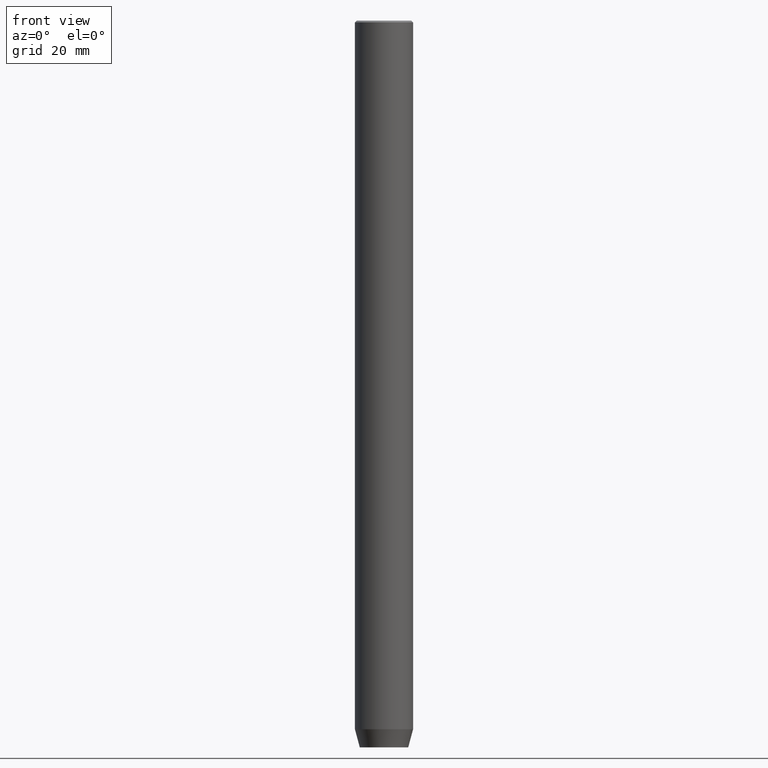
[diagram: clean part render]
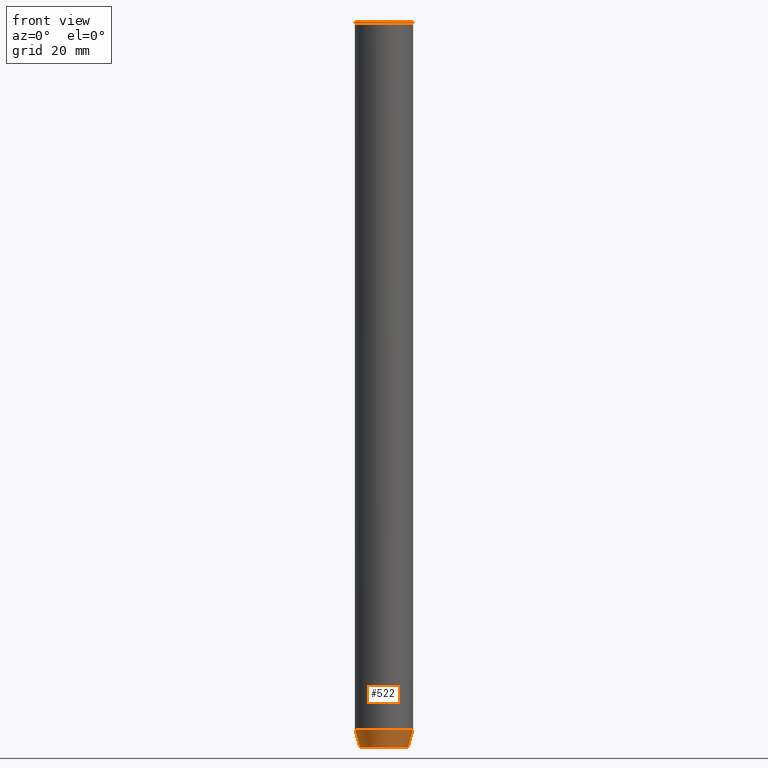
[diagram: same view with one face highlighted and labeled with its STEP entity id]
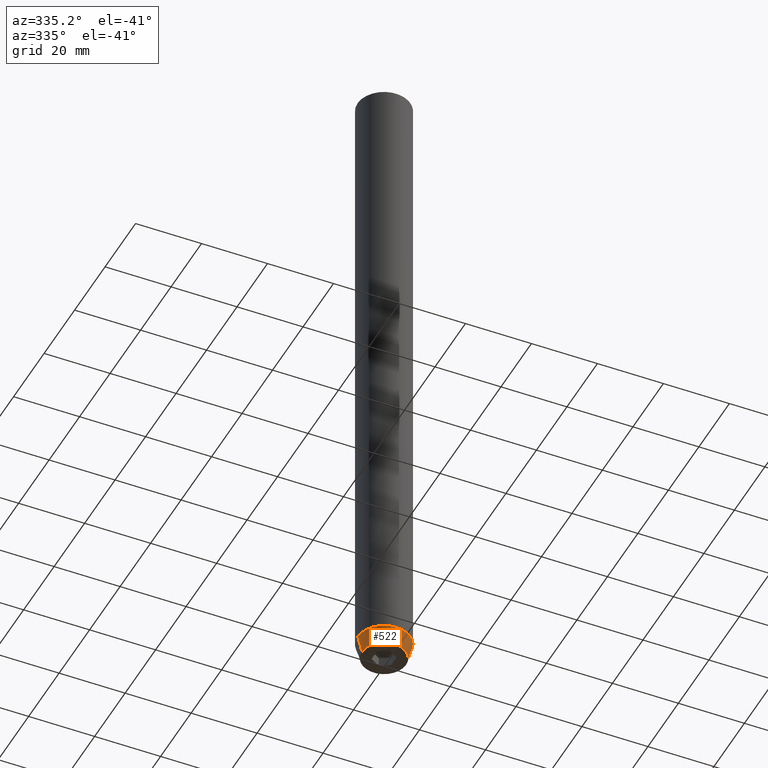
[diagram: same view with one face highlighted and labeled with its STEP entity id]
A machine part, front view. The second image highlights one B-rep face of the part: STEP entity #522.
A second angle (auxiliary view) of the same face is appended — the face is thin or edge-on in the first view.
In plain terms, the highlighted conical surface has half-angle 15 deg.
Its self-contained STEP definition (entity closure, byte-faithful):
#10 = CARTESIAN_POINT ( 'NONE',  ( 8.000000000000000000, 0.000000000000000000, -195.0000000000000000 ) ) ;
#19 = EDGE_CURVE ( 'NONE', #490, #502, #282, .T. ) ;
#45 = CARTESIAN_POINT ( 'NONE',  ( -8.000000000000000000, 9.797174393178825657E-16, -195.0000000000000000 ) ) ;
#52 = DIRECTION ( 'NONE',  ( 1.000000000000000000, 0.000000000000000000, 0.000000000000000000 ) ) ;
#89 = CARTESIAN_POINT ( 'NONE',  ( 8.000000000000000000, 0.000000000000000000, -195.0000000000000000 ) ) ;
#90 = ORIENTED_EDGE ( 'NONE', *, *, #19, .T. ) ;
#100 = CARTESIAN_POINT ( 'NONE',  ( 6.660254037844381969, 0.000000000000000000, -200.0000000000000000 ) ) ;
#107 = DIRECTION ( 'NONE',  ( 0.2588190451025213501, 0.000000000000000000, 0.9659258262890680902 ) ) ;
#124 = DIRECTION ( 'NONE',  ( 1.000000000000000000, 0.000000000000000000, 0.000000000000000000 ) ) ;
#145 = AXIS2_PLACEMENT_3D ( 'NONE', #193, #198, #124 ) ;
#193 = CARTESIAN_POINT ( 'NONE',  ( 0.000000000000000000, 0.000000000000000000, -200.0000000000000000 ) ) ;
#198 = DIRECTION ( 'NONE',  ( -0.000000000000000000, -0.000000000000000000, 1.000000000000000000 ) ) ;
#203 = AXIS2_PLACEMENT_3D ( 'NONE', #508, #461, #424 ) ;
#222 = ORIENTED_EDGE ( 'NONE', *, *, #287, .T. ) ;
#224 = FACE_OUTER_BOUND ( 'NONE', #235, .T. ) ;
#235 = EDGE_LOOP ( 'NONE', ( #347, #222, #90, #239 ) ) ;
#239 = ORIENTED_EDGE ( 'NONE', *, *, #349, .F. ) ;
#275 = CARTESIAN_POINT ( 'NONE',  ( -8.000000000000000000, 9.797174393178825657E-16, -195.0000000000000000 ) ) ;
#282 = LINE ( 'NONE', #10, #518 ) ;
#287 = EDGE_CURVE ( 'NONE', #397, #490, #369, .T. ) ;
#309 = VECTOR ( 'NONE', #448, 1000.000000000000000 ) ;
#347 = ORIENTED_EDGE ( 'NONE', *, *, #438, .F. ) ;
#349 = EDGE_CURVE ( 'NONE', #445, #502, #474, .T. ) ;
#353 = LINE ( 'NONE', #45, #309 ) ;
#360 = DIRECTION ( 'NONE',  ( -0.000000000000000000, -0.000000000000000000, 1.000000000000000000 ) ) ;
#369 = CIRCLE ( 'NONE', #145, 6.660254037844381969 ) ;
#397 = VERTEX_POINT ( 'NONE', #489 ) ;
#404 = CARTESIAN_POINT ( 'NONE',  ( 0.000000000000000000, 0.000000000000000000, -195.0000000000000000 ) ) ;
#424 = DIRECTION ( 'NONE',  ( 1.000000000000000000, 0.000000000000000000, 0.000000000000000000 ) ) ;
#429 = AXIS2_PLACEMENT_3D ( 'NONE', #404, #360, #52 ) ;
#438 = EDGE_CURVE ( 'NONE', #397, #445, #353, .T. ) ;
#445 = VERTEX_POINT ( 'NONE', #275 ) ;
#448 = DIRECTION ( 'NONE',  ( -0.2588190451025213501, 3.169619151431772337E-17, 0.9659258262890680902 ) ) ;
#461 = DIRECTION ( 'NONE',  ( -0.000000000000000000, -0.000000000000000000, 1.000000000000000000 ) ) ;
#474 = CIRCLE ( 'NONE', #203, 8.000000000000000000 ) ;
#489 = CARTESIAN_POINT ( 'NONE',  ( -6.660254037844381969, 8.976816591066591237E-16, -200.0000000000000000 ) ) ;
#490 = VERTEX_POINT ( 'NONE', #100 ) ;
#492 = CONICAL_SURFACE ( 'NONE', #429, 8.000000000000000000, 0.2617993877991500740 ) ;
#502 = VERTEX_POINT ( 'NONE', #89 ) ;
#508 = CARTESIAN_POINT ( 'NONE',  ( 0.000000000000000000, 0.000000000000000000, -195.0000000000000000 ) ) ;
#518 = VECTOR ( 'NONE', #107, 1000.000000000000000 ) ;
#522 = ADVANCED_FACE ( 'NONE', ( #224 ), #492, .T. ) ;